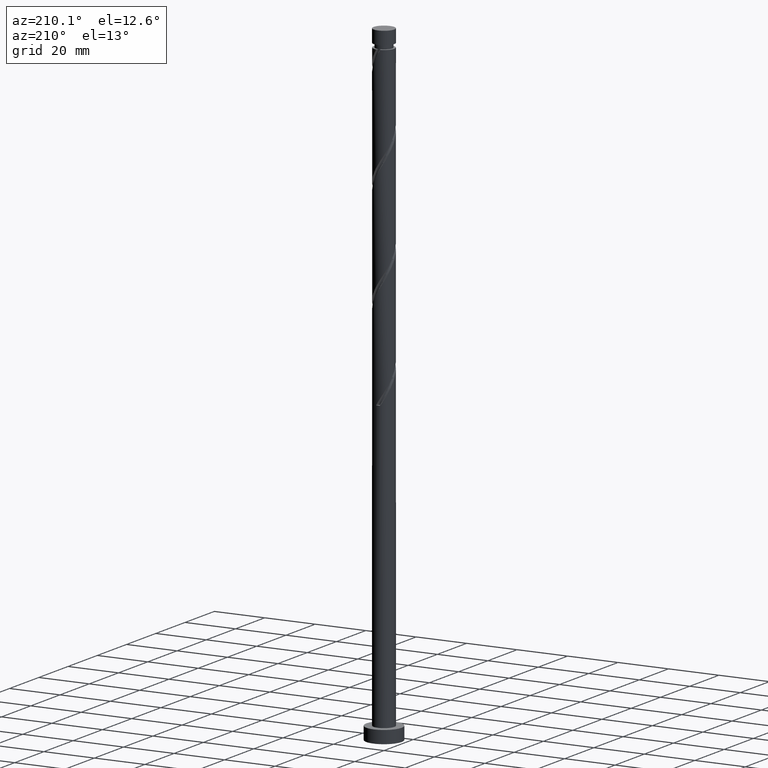
[diagram: clean part render]
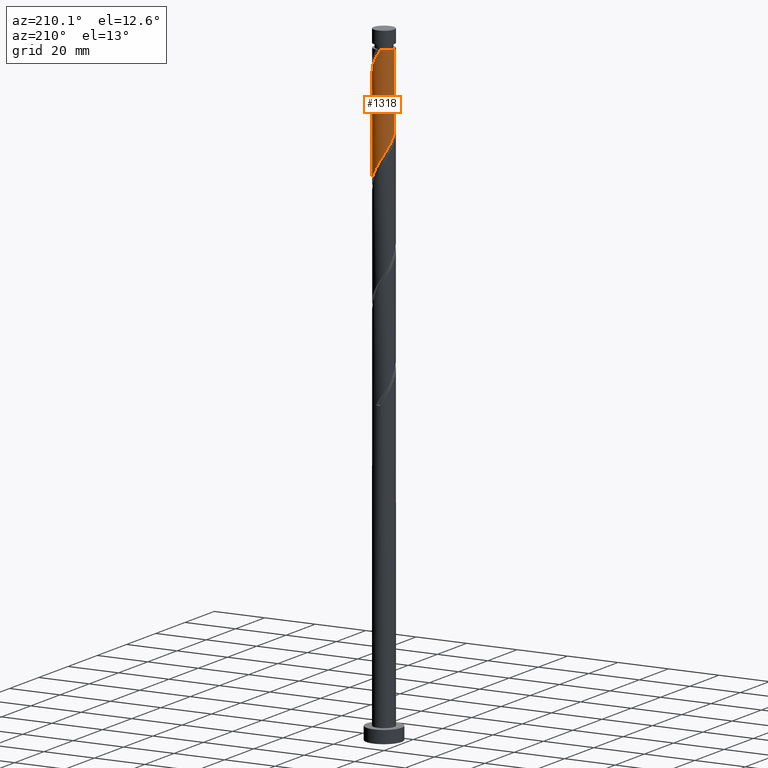
[diagram: same view with one face highlighted and labeled with its STEP entity id]
A machine part, auxiliary view. The second image highlights one B-rep face of the part: STEP entity #1318.
In plain terms, the highlighted cylindrical surface (edge-blend (fillet) strip) has radius 4.1 mm, axis along (-0, -0, -1).
Its self-contained STEP definition (entity closure, byte-faithful):
#4 = CARTESIAN_POINT ( 'NONE',  ( 4.087048891828945152, 0.3256245626482048294, 232.0290729823846902 ) ) ;
#14 = CARTESIAN_POINT ( 'NONE',  ( -2.843270998262973581, 2.953948210520399797, 207.9906114439231146 ) ) ;
#26 = VERTEX_POINT ( 'NONE', #208 ) ;
#75 = DIRECTION ( 'NONE',  ( -0.000000000000000000, -0.000000000000000000, -1.000000000000000000 ) ) ;
#88 = EDGE_CURVE ( 'NONE', #26, #844, #1734, .T. ) ;
#97 = CYLINDRICAL_SURFACE ( 'NONE', #1009, 4.099999999999999645 ) ;
#148 = CARTESIAN_POINT ( 'NONE',  ( 4.100000000000006750, 0.1630698343807443773, 231.7666040734078194 ) ) ;
#156 = CARTESIAN_POINT ( 'NONE',  ( 1.144823255530918127, 3.936925159765629623, 240.0418934952051586 ) ) ;
#198 = ORIENTED_EDGE ( 'NONE', *, *, #1155, .F. ) ;
#208 = CARTESIAN_POINT ( 'NONE',  ( -4.099999999999998757, -5.653344765582381697E-15, 213.3249435762252801 ) ) ;
#229 = CARTESIAN_POINT ( 'NONE',  ( 3.275129049406524828, 2.466481240499002414, 196.7726627259744134 ) ) ;
#239 = CARTESIAN_POINT ( 'NONE',  ( 0.8158896984274309760, 4.017999999999998906, 201.5803550336667627 ) ) ;
#253 = EDGE_CURVE ( 'NONE', #865, #342, #884, .T. ) ;
#306 = CARTESIAN_POINT ( 'NONE',  ( 1.622852516227274000, 3.797918449640103500, 239.2406114439231430 ) ) ;
#319 = CARTESIAN_POINT ( 'NONE',  ( -4.087048891828938935, 0.3256245626482077160, 212.7983037516154070 ) ) ;
#342 = VERTEX_POINT ( 'NONE', #948 ) ;
#360 = CARTESIAN_POINT ( 'NONE',  ( 2.203740304420988227, 3.493045019780353311, 199.1765088798206307 ) ) ;
#368 = CARTESIAN_POINT ( 'NONE',  ( 3.574614093208416943, 2.068808576011225142, 195.9713806746923979 ) ) ;
#376 = CARTESIAN_POINT ( 'NONE',  ( 4.100000000000000533, 0.3331513980018835919, 193.0313109802402209 ) ) ;
#380 = CARTESIAN_POINT ( 'NONE',  ( 0.000000000000000000, 0.000000000000000000, 250.0000000000000000 ) ) ;
#435 = CARTESIAN_POINT ( 'NONE',  ( 0.6667939948345591450, 4.075931869891159742, 240.8431755464872879 ) ) ;
#441 = ORIENTED_EDGE ( 'NONE', *, *, #1251, .T. ) ;
#450 = EDGE_LOOP ( 'NONE', ( #727, #441, #825, #198, #1313 ) ) ;
#465 = CARTESIAN_POINT ( 'NONE',  ( 3.467576788759973550, 2.187672556406262458, 235.2342011875128662 ) ) ;
#488 = CARTESIAN_POINT ( 'NONE',  ( 1.753751765717732392, 3.705989037253338836, 199.9777909311026463 ) ) ;
#509 = CARTESIAN_POINT ( 'NONE',  ( -4.099999999999999645, 0.000000000000000000, 250.0000000000000000 ) ) ;
#519 = FACE_OUTER_BOUND ( 'NONE', #450, .T. ) ;
#524 = VECTOR ( 'NONE', #1637, 1000.000000000000000 ) ;
#563 = CARTESIAN_POINT ( 'NONE',  ( 4.047510911646318377, 0.8218821446204189751, 232.8303550336667627 ) ) ;
#572 = CARTESIAN_POINT ( 'NONE',  ( -2.484596748205738503, 3.299183813967827561, 207.1893293926411559 ) ) ;
#600 = CARTESIAN_POINT ( 'NONE',  ( 0.1693889124970889282, 4.096499407582417263, 241.6444575977692750 ) ) ;
#610 = CARTESIAN_POINT ( 'NONE',  ( 2.843270998262978466, 2.953948210520402906, 236.8367652900769258 ) ) ;
#644 = CARTESIAN_POINT ( 'NONE',  ( -2.053724632216503920, 3.548551131803961312, 206.3880473413589982 ) ) ;
#645 =( BOUNDED_CURVE ( )  B_SPLINE_CURVE ( 2, ( #1416, #148, #4, #563, #1145, #1382, #465, #877, #610, #1584, #1426, #306, #156, #435, #600, #864, #1294 ),
 .UNSPECIFIED., .F., .T. ) 
 B_SPLINE_CURVE_WITH_KNOTS ( ( 3, 2, 2, 2, 2, 2, 2, 2, 3 ),
 ( 0.6795271625973832164, 0.6826923076923077094, 0.6923076923076924016, 0.7019230769230769829, 0.7115384615384616751, 0.7211538461538463674, 0.7307692307692310596, 0.7403846153846157518, 0.7500000000000003331 ),
 .UNSPECIFIED. ) 
 CURVE ( )  GEOMETRIC_REPRESENTATION_ITEM ( )  RATIONAL_B_SPLINE_CURVE ( ( 0.9061636035682867352, 0.9069090390690752734, 0.9090909090909319312, 0.9024626128164353611, 0.9090909090909319312, 0.9024626128164353611, 0.9090909090909319312, 0.9024626128164353611, 0.9090909090909319312, 0.9024626128164353611, 0.9090909090909319312, 0.9024626128164353611, 0.9090909090909319312, 0.9024626128164353611, 0.9090909090909319312, 0.9024626128164351391, 0.9090909090909321533 ) ) 
 REPRESENTATION_ITEM ( '' )  );
#655 = DIRECTION ( 'NONE',  ( -0.000000000000000000, -0.000000000000000000, -1.000000000000000000 ) ) ;
#656 = EDGE_CURVE ( 'NONE', #1423, #342, #645, .T. ) ;
#727 = ORIENTED_EDGE ( 'NONE', *, *, #656, .F. ) ;
#759 = VECTOR ( 'NONE', #655, 1000.000000000000000 ) ;
#774 = CARTESIAN_POINT ( 'NONE',  ( -0.1693889124970843485, 4.096499407582411045, 203.1829191362308507 ) ) ;
#792 = CARTESIAN_POINT ( 'NONE',  ( 0.000000000000000000, 0.000000000000000000, 243.2470217003333914 ) ) ;
#796 = DIRECTION ( 'NONE',  ( -0.000000000000000000, -0.000000000000000000, -1.000000000000000000 ) ) ;
#802 = CARTESIAN_POINT ( 'NONE',  ( 4.099999999999999645, 5.907595720648257465E-15, 192.4916102428919373 ) ) ;
#825 = ORIENTED_EDGE ( 'NONE', *, *, #88, .F. ) ;
#844 = VERTEX_POINT ( 'NONE', #1620 ) ;
#864 = CARTESIAN_POINT ( 'NONE',  ( -0.3280161698404022719, 4.117066945273676559, 242.4457396490513759 ) ) ;
#865 = VERTEX_POINT ( 'NONE', #1683 ) ;
#877 = CARTESIAN_POINT ( 'NONE',  ( 3.201945248320214432, 2.608712607072973810, 236.0354832387949102 ) ) ;
#884 = CIRCLE ( 'NONE', #1385, 4.099999999999981881 ) ;
#915 = CARTESIAN_POINT ( 'NONE',  ( -3.201945248320208659, 2.608712607072973810, 208.7918934952052723 ) ) ;
#939 = CARTESIAN_POINT ( 'NONE',  ( 3.770227348058447170, 1.611020094211166542, 195.1700986234103254 ) ) ;
#948 = CARTESIAN_POINT ( 'NONE',  ( -0.8158896984258225960, 4.017999999984014359, 243.2470217003333630 ) ) ;
#1009 = AXIS2_PLACEMENT_3D ( 'NONE', #380, #796, #1664 ) ;
#1027 = CARTESIAN_POINT ( 'NONE',  ( 4.100000000000004974, -1.974183886393834147E-15, 231.5024331577748171 ) ) ;
#1060 = CARTESIAN_POINT ( 'NONE',  ( -3.733208329199730002, 1.766632505739547554, 210.3944575977693319 ) ) ;
#1145 = CARTESIAN_POINT ( 'NONE',  ( 3.890359620423026854, 1.294257325179981155, 233.6316370849487782 ) ) ;
#1155 = EDGE_CURVE ( 'NONE', #865, #26, #1489, .T. ) ;
#1216 = CARTESIAN_POINT ( 'NONE',  ( 3.965840602908481838, 1.153231612411104834, 194.3688165721283099 ) ) ;
#1223 = CARTESIAN_POINT ( 'NONE',  ( -1.622852516227271114, 3.797918449640097283, 205.5867652900770111 ) ) ;
#1231 = CARTESIAN_POINT ( 'NONE',  ( -0.6667939948345560364, 4.075931869891155301, 203.9842011875128662 ) ) ;
#1233 = CARTESIAN_POINT ( 'NONE',  ( 4.099999999999999645, 5.021051876504147385E-16, 250.0000000000000000 ) ) ;
#1251 = EDGE_CURVE ( 'NONE', #1423, #844, #1797, .T. ) ;
#1294 = CARTESIAN_POINT ( 'NONE',  ( -0.8158896984258225960, 4.017999999984014359, 243.2470217003333346 ) ) ;
#1313 = ORIENTED_EDGE ( 'NONE', *, *, #253, .T. ) ;
#1318 = ADVANCED_FACE ( 'NONE', ( #519 ), #97, .T. ) ;
#1336 = CARTESIAN_POINT ( 'NONE',  ( 1.303763227014475223, 3.918933054726328802, 200.7790729823846902 ) ) ;
#1382 = CARTESIAN_POINT ( 'NONE',  ( 3.733208329199736664, 1.766632505739547110, 234.4329191362308507 ) ) ;
#1385 = AXIS2_PLACEMENT_3D ( 'NONE', #792, #75, #1651 ) ;
#1416 = CARTESIAN_POINT ( 'NONE',  ( 4.100000000000004974, -1.974183886393834147E-15, 231.5024331577748171 ) ) ;
#1423 = VERTEX_POINT ( 'NONE', #1027 ) ;
#1426 = CARTESIAN_POINT ( 'NONE',  ( 2.053724632216509693, 3.548551131803965308, 238.4393293926410706 ) ) ;
#1473 = CARTESIAN_POINT ( 'NONE',  ( -3.890359620423019749, 1.294257325179983376, 211.1957396490513474 ) ) ;
#1489 = LINE ( 'NONE', #509, #524 ) ;
#1509 = CARTESIAN_POINT ( 'NONE',  ( 2.975644005604635822, 2.864153904986782795, 197.5739447772564858 ) ) ;
#1518 = CARTESIAN_POINT ( 'NONE',  ( -1.144823255530913242, 3.936925159765625182, 204.7854832387948818 ) ) ;
#1526 = CARTESIAN_POINT ( 'NONE',  ( 4.046213737460023552, 0.6619323158675556318, 193.5675345208462659 ) ) ;
#1584 = CARTESIAN_POINT ( 'NONE',  ( 2.484596748205746053, 3.299183813967828449, 237.6380473413590551 ) ) ;
#1605 = CARTESIAN_POINT ( 'NONE',  ( -4.099999999999998757, -5.653344765582381697E-15, 213.3249435762252517 ) ) ;
#1614 = CARTESIAN_POINT ( 'NONE',  ( -4.047510911646313936, 0.8218821446204194192, 211.9970217003333630 ) ) ;
#1620 = CARTESIAN_POINT ( 'NONE',  ( 4.099999999999999645, 5.907595720648257465E-15, 192.4916102428919373 ) ) ;
#1623 = CARTESIAN_POINT ( 'NONE',  ( -3.467576788759967776, 2.187672556406260682, 209.5931755464871742 ) ) ;
#1631 = CARTESIAN_POINT ( 'NONE',  ( 0.3280161698403873394, 4.117066945273671230, 202.3816370849488067 ) ) ;
#1637 = DIRECTION ( 'NONE',  ( -0.000000000000000000, -0.000000000000000000, -1.000000000000000000 ) ) ;
#1651 = DIRECTION ( 'NONE',  ( -1.000000000000000000, 0.000000000000000000, 0.000000000000000000 ) ) ;
#1664 = DIRECTION ( 'NONE',  ( -1.000000000000000000, 0.000000000000000000, 0.000000000000000000 ) ) ;
#1683 = CARTESIAN_POINT ( 'NONE',  ( -4.099999999999981881, 0.000000000000000000, 243.2470217003333914 ) ) ;
#1734 =( BOUNDED_CURVE ( )  B_SPLINE_CURVE ( 2, ( #1605, #1751, #319, #1614, #1473, #1060, #1623, #915, #14, #572, #644, #1223, #1518, #1231, #774, #1631, #239, #1336, #488, #360, #1786, #1509, #229, #368, #939, #1216, #1526, #376, #802 ),
 .UNSPECIFIED., .F., .T. ) 
 B_SPLINE_CURVE_WITH_KNOTS ( ( 3, 2, 2, 2, 2, 2, 2, 2, 2, 2, 2, 2, 2, 2, 3 ),
 ( 0.4295271625973834384, 0.4326923076923077094, 0.4423076923076922906, 0.4519230769230769273, 0.4615384615384615641, 0.4711538461538461453, 0.4807692307692307820, 0.4903846153846153633, 0.5000000000000000000, 0.5096153846153845812, 0.5192307692307692735, 0.5288461538461538547, 0.5384615384615384359, 0.5480769230769231282, 0.5545271625973833274 ),
 .UNSPECIFIED. ) 
 CURVE ( )  GEOMETRIC_REPRESENTATION_ITEM ( )  RATIONAL_B_SPLINE_CURVE ( ( 0.9061636035682805179, 0.9069090390690692782, 0.9090909090909258250, 0.9024626128164292549, 0.9090909090909258250, 0.9024626128164292549, 0.9090909090909258250, 0.9024626128164292549, 0.9090909090909258250, 0.9024626128164292549, 0.9090909090909258250, 0.9024626128164292549, 0.9090909090909258250, 0.9024626128164292549, 0.9090909090909258250, 0.9024626128164292549, 0.9090909090909258250, 0.9024626128164292549, 0.9090909090909258250, 0.9024626128164292549, 0.9090909090909258250, 0.9024626128164292549, 0.9090909090909258250, 0.9024626128164292549, 0.9090909090909258250, 0.9024626128164292549, 0.9090909090909258250, 0.9046444828382858017, 0.9061636035682806289 ) ) 
 REPRESENTATION_ITEM ( '' )  );
#1751 = CARTESIAN_POINT ( 'NONE',  ( -4.099999999999999645, 0.1630698343807590045, 213.0607726605923631 ) ) ;
#1786 = CARTESIAN_POINT ( 'NONE',  ( 2.589692155012810915, 3.178599462383565388, 198.3752268285385014 ) ) ;
#1797 = LINE ( 'NONE', #1233, #759 ) ;